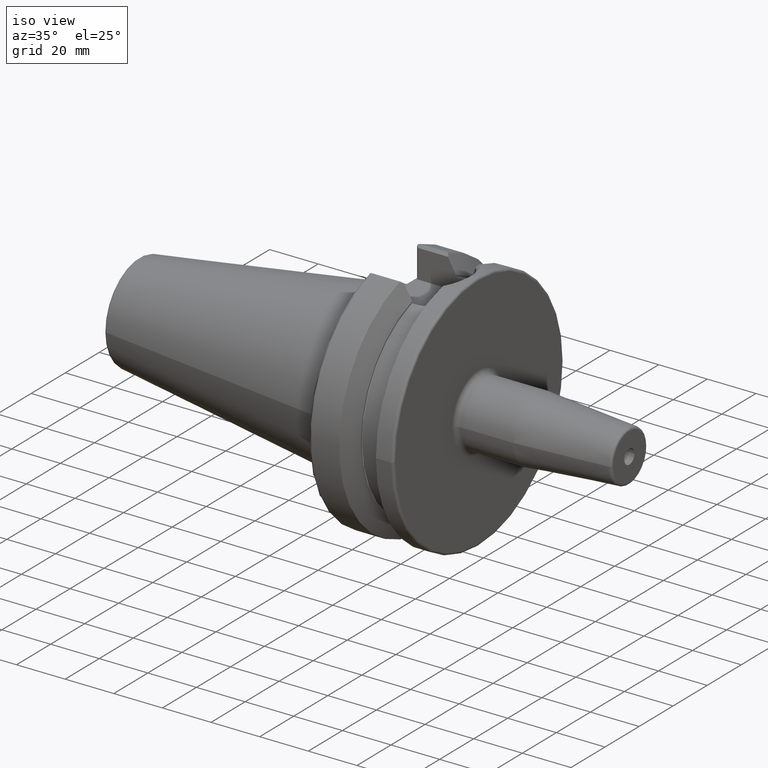
[diagram: clean part render]
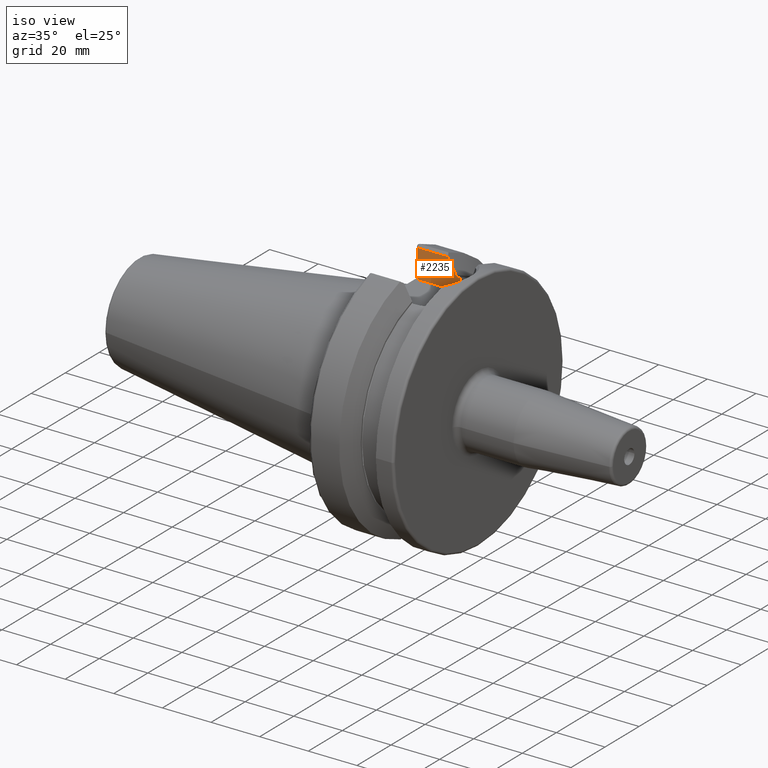
[diagram: same view with one face highlighted and labeled with its STEP entity id]
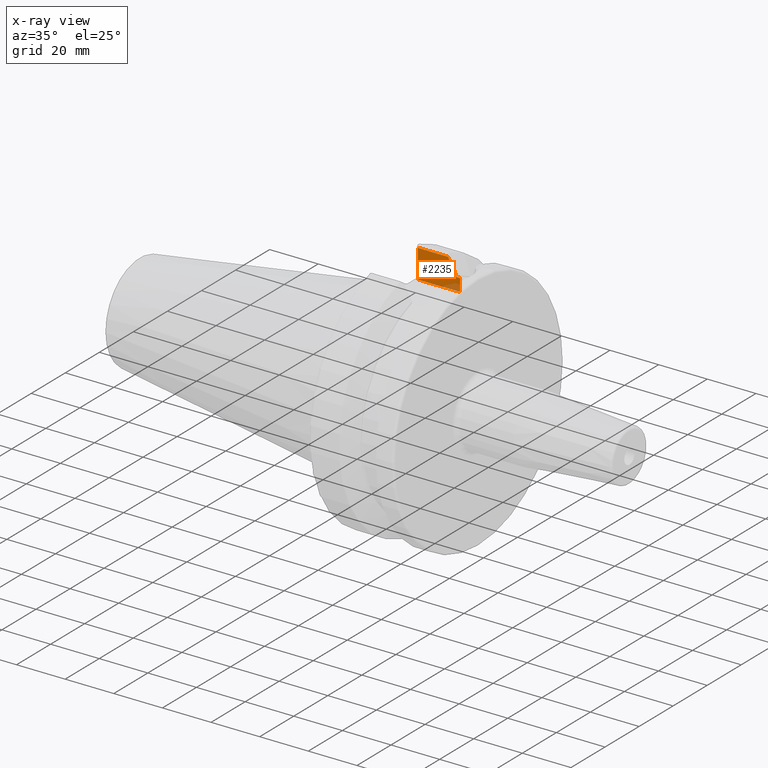
[diagram: x-ray of the same camera — body ghosted, the highlighted face saturated]
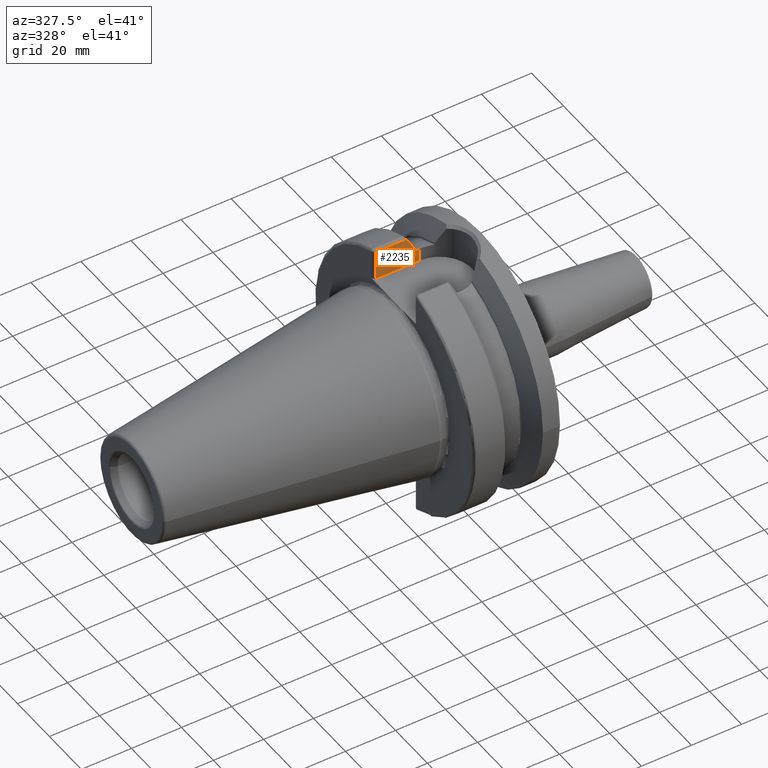
[diagram: same view with one face highlighted and labeled with its STEP entity id]
A machine part, iso view. The second image highlights one B-rep face of the part: STEP entity #2235.
The next image is the same camera in x-ray: the body ghosted, the highlighted face saturated — about 7% of this face is hidden behind the body in this view.
A second angle (auxiliary view) of the same face is appended — the face is thin or edge-on in the first view.
In plain terms, the highlighted planar face has unit normal (0, 1, 0).
Its self-contained STEP definition (entity closure, byte-faithful):
#639=DIRECTION('',(0.E0,0.E0,1.E0));
#640=VECTOR('',#639,4.678451531613E-1);
#641=CARTESIAN_POINT('',(1.96625E1,1.29025E1,4.062531376802E1));
#642=LINE('',#641,#640);
#643=CARTESIAN_POINT('',(1.99125E1,1.29025E1,4.036293000700E1));
#644=CARTESIAN_POINT('',(1.988482223968E1,1.29025E1,4.036293000700E1));
#645=CARTESIAN_POINT('',(1.983275140013E1,1.29025E1,4.037231907874E1));
#646=CARTESIAN_POINT('',(1.976358989115E1,1.29025E1,4.040921074747E1));
#647=CARTESIAN_POINT('',(1.970597803203E1,1.29025E1,4.046933362101E1));
#648=CARTESIAN_POINT('',(1.967010312706E1,1.29025E1,4.054571527488E1));
#649=CARTESIAN_POINT('',(1.96625E1,1.29025E1,4.059802443585E1));
#650=CARTESIAN_POINT('',(1.96625E1,1.29025E1,4.062531376802E1));
#652=DIRECTION('',(1.E0,0.E0,0.E0));
#653=VECTOR('',#652,1.435E0);
#654=CARTESIAN_POINT('',(1.99125E1,1.29025E1,4.036293000700E1));
#655=LINE('',#654,#653);
#656=DIRECTION('',(0.E0,0.E0,1.E0));
#657=VECTOR('',#656,5.162930007E0);
#658=CARTESIAN_POINT('',(2.13475E1,1.29025E1,3.52E1));
#659=LINE('',#658,#657);
#660=DIRECTION('',(0.E0,0.E0,1.E0));
#661=VECTOR('',#660,1.177335042340E1);
#662=CARTESIAN_POINT('',(4.E0,1.29025E1,3.52E1));
#663=LINE('',#662,#661);
#664=DIRECTION('',(1.E0,0.E0,0.E0));
#665=VECTOR('',#664,1.240508297825E1);
#666=CARTESIAN_POINT('',(4.E0,1.29025E1,4.697335042340E1));
#667=LINE('',#666,#665);
#668=CARTESIAN_POINT('',(1.96625E1,1.29025E1,4.109315892118E1));
#669=CARTESIAN_POINT('',(1.932181966297E1,1.29025E1,4.171163717070E1));
#670=CARTESIAN_POINT('',(1.862628256782E1,1.29025E1,4.297182203666E1));
#671=CARTESIAN_POINT('',(1.754114212137E1,1.29025E1,4.493063136453E1));
#672=CARTESIAN_POINT('',(1.678855217457E1,1.29025E1,4.628456220339E1));
#673=CARTESIAN_POINT('',(1.640508297825E1,1.29025E1,4.697335042340E1));
#687=DIRECTION('',(-1.E0,0.E0,0.E0));
#688=VECTOR('',#687,1.73475E1);
#689=CARTESIAN_POINT('',(2.13475E1,1.29025E1,3.52E1));
#690=LINE('',#689,#688);
#1180=CARTESIAN_POINT('',(1.96625E1,1.29025E1,4.062531376802E1));
#1182=VERTEX_POINT('',#1180);
#1188=CARTESIAN_POINT('',(1.99125E1,1.29025E1,4.036293000700E1));
#1190=VERTEX_POINT('',#1188);
#1217=CARTESIAN_POINT('',(1.96625E1,1.29025E1,4.109315892118E1));
#1219=VERTEX_POINT('',#1217);
#1307=CARTESIAN_POINT('',(2.13475E1,1.29025E1,3.52E1));
#1309=VERTEX_POINT('',#1307);
#1322=CARTESIAN_POINT('',(2.13475E1,1.29025E1,4.036293000700E1));
#1323=VERTEX_POINT('',#1322);
#1324=VERTEX_POINT('',#673);
#1362=CARTESIAN_POINT('',(4.E0,1.29025E1,3.52E1));
#1363=CARTESIAN_POINT('',(4.E0,1.29025E1,4.697335042340E1));
#1364=VERTEX_POINT('',#1362);
#1365=VERTEX_POINT('',#1363);
#2218=CARTESIAN_POINT('',(2.13475E1,1.29025E1,3.52E1));
#2219=DIRECTION('',(0.E0,1.E0,0.E0));
#2220=DIRECTION('',(-1.E0,0.E0,0.E0));
#2221=AXIS2_PLACEMENT_3D('',#2218,#2219,#2220);
#2222=PLANE('',#2221);
#2223=ORIENTED_EDGE('',*,*,#1660,.F.);
#2224=ORIENTED_EDGE('',*,*,#1814,.F.);
#2225=ORIENTED_EDGE('',*,*,#1846,.T.);
#2226=ORIENTED_EDGE('',*,*,#1963,.F.);
#2228=ORIENTED_EDGE('',*,*,#2227,.T.);
#2230=ORIENTED_EDGE('',*,*,#2229,.T.);
#2231=ORIENTED_EDGE('',*,*,#2211,.T.);
#2232=ORIENTED_EDGE('',*,*,#1692,.F.);
#2233=EDGE_LOOP('',(#2223,#2224,#2225,#2226,#2228,#2230,#2231,#2232));
#2234=FACE_OUTER_BOUND('',#2233,.F.);
#2235=ADVANCED_FACE('',(#2234),#2222,.F.);
#651=B_SPLINE_CURVE_WITH_KNOTS('',3,(#643,#644,#645,#646,#647,#648,#649,#650),
.UNSPECIFIED.,.F.,.F.,(4,1,1,1,1,4),(0.E0,2.E-1,4.E-1,6.E-1,8.E-1,1.E0),
.UNSPECIFIED.);
#674=B_SPLINE_CURVE_WITH_KNOTS('',3,(#668,#669,#670,#671,#672,#673),
.UNSPECIFIED.,.F.,.F.,(4,1,1,4),(0.E0,3.333333333333E-1,6.666666666667E-1,1.E0),
.UNSPECIFIED.);
#1660=EDGE_CURVE('',#1182,#1219,#642,.T.);
#1692=EDGE_CURVE('',#1219,#1324,#674,.T.);
#1814=EDGE_CURVE('',#1190,#1182,#651,.T.);
#1846=EDGE_CURVE('',#1190,#1323,#655,.T.);
#1963=EDGE_CURVE('',#1309,#1323,#659,.T.);
#2211=EDGE_CURVE('',#1365,#1324,#667,.T.);
#2227=EDGE_CURVE('',#1309,#1364,#690,.T.);
#2229=EDGE_CURVE('',#1364,#1365,#663,.T.);